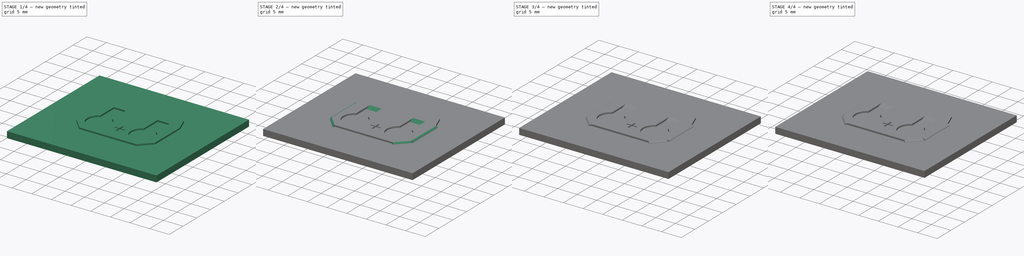
[diagram: build sequence overview — one tinted view per stage of 4, left to right]
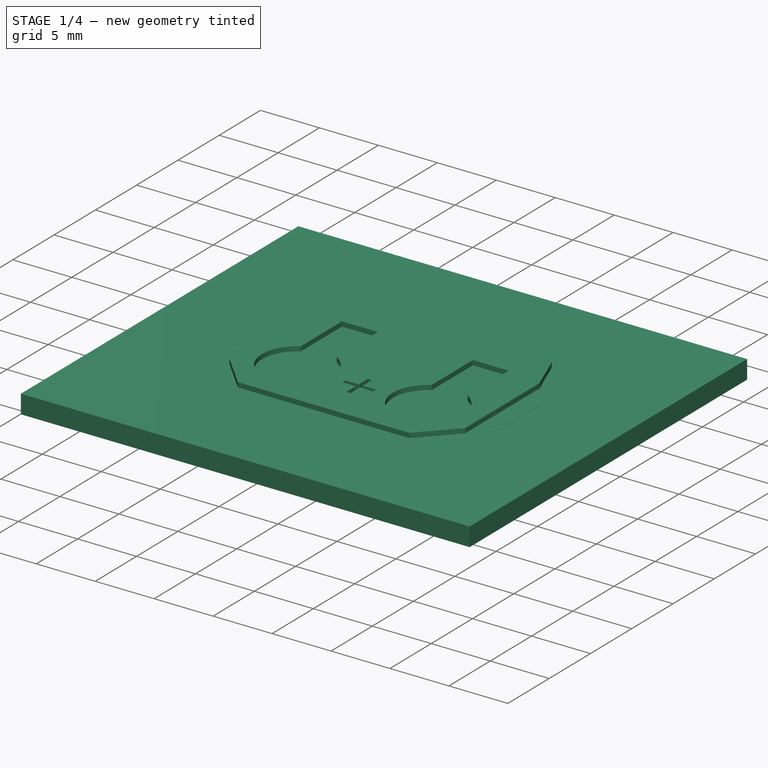
[diagram: stage 1 of 4 — iso view after this stage's code; geometry added in this stage tinted green]
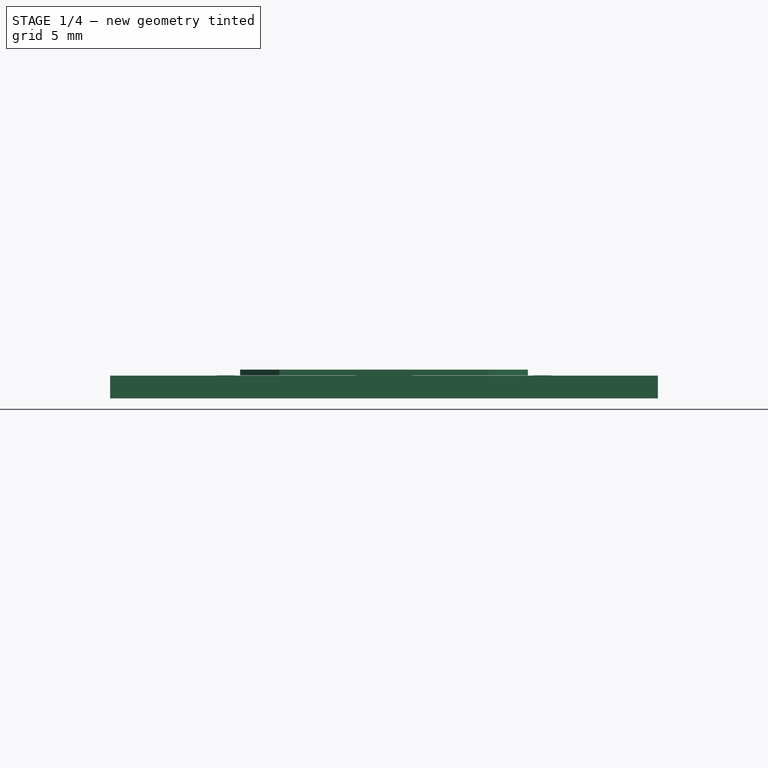
[diagram: stage 1 of 4 — front view after this stage's code; geometry added in this stage tinted green]
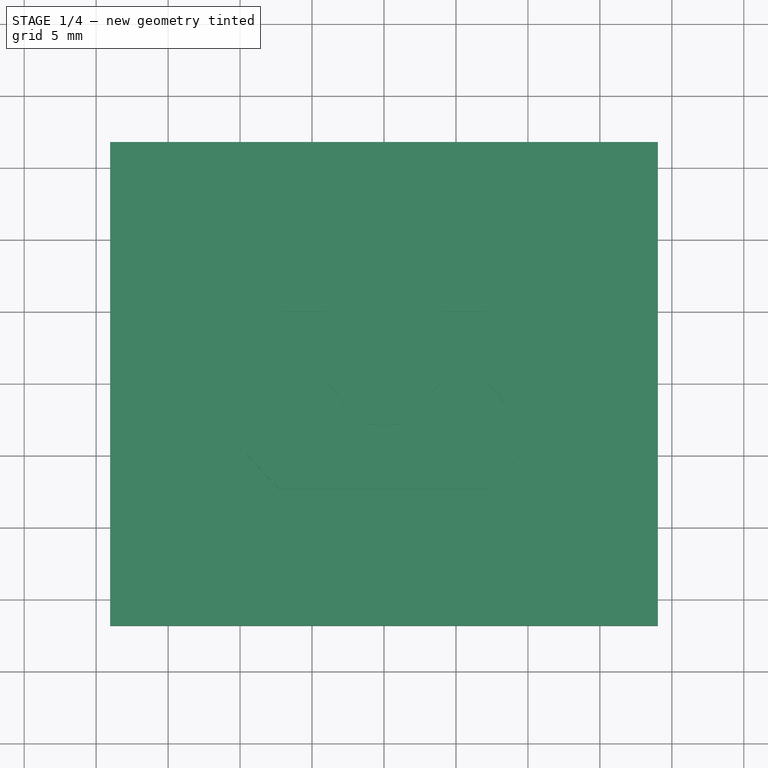
[diagram: stage 1 of 4 — top view after this stage's code; geometry added in this stage tinted green]
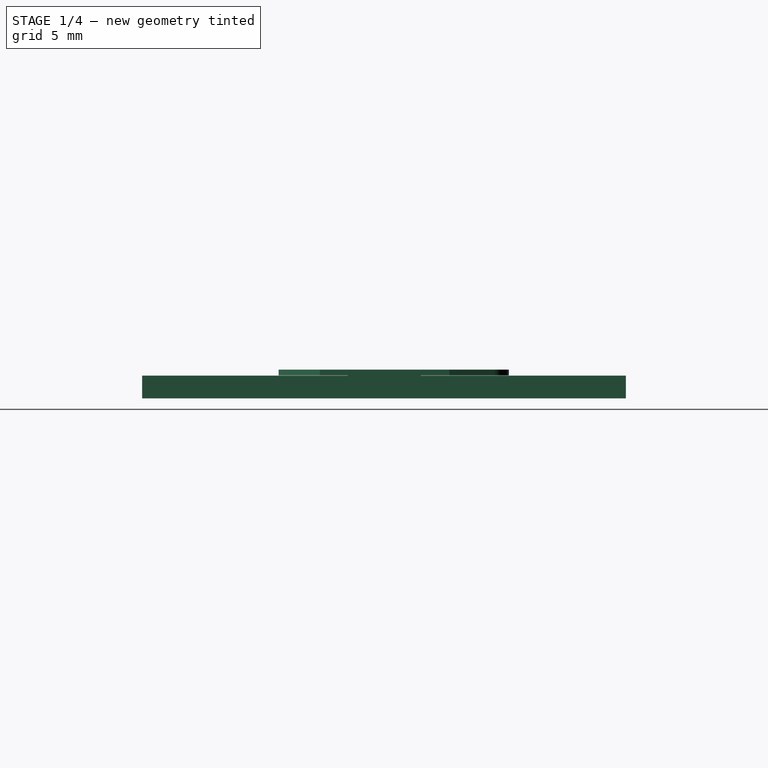
[diagram: stage 1 of 4 — right view after this stage's code; geometry added in this stage tinted green]
FCSTD DOCUMENT  (FreeCAD 0.18R16110 (Git))
Label: BatteryHolder_Keystone_3034_1x20mm
License: CreativeCommons Attribution
LicenseURL: http://creativecommons.org/licenses/by/4.0/
objects: PartDesign::FeaturePython×5, Part::FeaturePython×5, Sketcher::SketchObject×2, PartDesign::Pad×2, PartDesign::Fillet×2, Image::ImagePlane×1, App::DocumentObjectGroup×1, Part::Feature×1
note: 19 computed .brp shape members not serialized (recipe doc carries the construction recipe); baked Part::Feature solids carry a one-line shape summary decoded from their .brp

FEATURE [Sketcher::SketchObject] Sketch
  MapMode = 5
  sketch-geometry (31):
    g0: LineSegment StartX=-10 StartY=4.52857 StartZ=0 EndX=-10 EndY=-4.47143 EndZ=0
    g1: LineSegment StartX=-10 StartY=-4.47143 StartZ=0 EndX=-7.27 EndY=-7.34 EndZ=0
    g2: LineSegment StartX=-7.27 StartY=-7.34 StartZ=0 EndX=7.27 EndY=-7.34 EndZ=0
    g3: LineSegment StartX=7.27 StartY=-7.34 StartZ=0 EndX=10 EndY=-4.47143 EndZ=0
    g4: LineSegment StartX=10 StartY=-4.47143 StartZ=0 EndX=10 EndY=4.52857 EndZ=0
    g5: LineSegment StartX=10 StartY=4.52857 StartZ=0 EndX=8.81335 EndY=7.6199 EndZ=0
    g6: LineSegment StartX=-10 StartY=4.52857 StartZ=0 EndX=-8.81335 EndY=7.6199 EndZ=0
    g7: ArcOfCircle CenterX=-7.3 CenterY=7.03898 CenterZ=0 NormalX=0 NormalY=0 NormalZ=1 AngleXU=0 Radius=1.62102 StartAngle=0.924467 EndAngle=2.77507
    g8: ArcOfCircle CenterX=-7e-16 CenterY=16.7152 CenterZ=0 NormalX=0 NormalY=0 NormalZ=1 AngleXU=0 Radius=10.5 StartAngle=4.06606 EndAngle=5.35872
    g9: ArcOfCircle CenterX=7.3 CenterY=7.03898 CenterZ=0 NormalX=0 NormalY=0 NormalZ=1 AngleXU=0 Radius=1.62102 StartAngle=0.366519 EndAngle=2.21713
    g10: LineSegment [constr] StartX=-7.3 StartY=8.66 StartZ=0 EndX=7.3 EndY=8.66 EndZ=0
    g11: ArcOfCircle CenterX=-5.55 CenterY=-2.58348 CenterZ=0 NormalX=0 NormalY=0 NormalZ=1 AngleXU=0 Radius=3 StartAngle=2.10404 EndAngle=7.32073
    g12: LineSegment StartX=-7.075 StartY=4e-16 StartZ=0 EndX=-7.075 EndY=5 EndZ=0
    g13: LineSegment StartX=-7.075 StartY=5 StartZ=0 EndX=-4.025 EndY=5 EndZ=0
    g14: LineSegment StartX=-4.025 StartY=5 StartZ=0 EndX=-4.025 EndY=0 EndZ=0
    g15: ArcOfCircle CenterX=5.55 CenterY=-2.58348 CenterZ=0 NormalX=0 NormalY=0 NormalZ=1 AngleXU=0 Radius=3 StartAngle=2.10404 EndAngle=7.32073
    g16: LineSegment StartX=4.025 StartY=-4e-16 StartZ=0 EndX=4.025 EndY=5 EndZ=0
    g17: LineSegment StartX=4.025 StartY=5 StartZ=0 EndX=7.075 EndY=5 EndZ=0
    g18: LineSegment StartX=7.075 StartY=5 StartZ=0 EndX=7.075 EndY=0 EndZ=0
    g19: LineSegment StartX=-0.175 StartY=-3.19 StartZ=0 EndX=-1.3 EndY=-3.19 EndZ=0
    g20: LineSegment StartX=-1.3 StartY=-3.19 StartZ=0 EndX=-1.3 EndY=-2.84 EndZ=0
    g21: LineSegment StartX=-1.3 StartY=-2.84 StartZ=0 EndX=-0.175 EndY=-2.84 EndZ=0
    g22: LineSegment StartX=-0.175 StartY=-2.84 StartZ=0 EndX=-0.175 EndY=-1.715 EndZ=0
    g23: LineSegment StartX=-0.175 StartY=-1.715 StartZ=0 EndX=0.175 EndY=-1.715 EndZ=0
    g24: LineSegment StartX=0.175 StartY=-1.715 StartZ=0 EndX=0.175 EndY=-2.84 EndZ=0
    g25: LineSegment StartX=0.175 StartY=-2.84 StartZ=0 EndX=1.3 EndY=-2.84 EndZ=0
    g26: LineSegment StartX=1.3 StartY=-2.84 StartZ=0 EndX=1.3 EndY=-3.19 EndZ=0
    g27: LineSegment StartX=1.3 StartY=-3.19 StartZ=0 EndX=0.175 EndY=-3.19 EndZ=0
    g28: LineSegment StartX=0.175 StartY=-3.19 StartZ=0 EndX=0.175 EndY=-4.315 EndZ=0
    g29: LineSegment StartX=0.175 StartY=-4.315 StartZ=0 EndX=-0.175 EndY=-4.315 EndZ=0
    g30: LineSegment StartX=-0.175 StartY=-4.315 StartZ=0 EndX=-0.175 EndY=-3.19 EndZ=0
  constraints (89):
    c: Vertical(g0)
    c: Coincident(g0,g1)
    c: Coincident(g1,g2)
    c: Horizontal(g2)
    c: Coincident(g2,g3)
    c: Coincident(g3,g4)
    c: Vertical(g4)
    c: Coincident(g4,g5)
    c: Equal(g1,g3)
    c: Equal(g0,g4)
    c: Equal(g5,g6)
    c: Symmetric(g9,g7,g-2)
    c: DistanceX(g0,g3) = 20
    c: Coincident(g6,g0)
    c: Tangent(g7,g6) = 1.5708
    c: Tangent(g8,g7) = 1.5708
    c: Tangent(g9,g8) = 1.5708
    c: Tangent(g9,g5) = -1.5708
    c: PointOnObject(g10,g7)
    c: PointOnObject(g10,g9)
    c: Tangent(g10,g9)
    c: Vertical(g12)
    c: Coincident(g12,g13)
    c: Horizontal(g13)
    c: Coincident(g13,g14)
    c: Coincident(g14,g11)
    c: Vertical(g14)
    c: Coincident(g11,g12)
    c: Equal(g12,g14)
    c: Vertical(g16)
    c: Coincident(g16,g17)
    c: Coincident(g17,g18)
    c: Coincident(g18,g15)
    c: Coincident(g15,g16)
    c: Equal(g16,g18)
    c: Symmetric(g11,g15,g-2)
    c: Symmetric(g16,g13,g-2)
    c: Symmetric(g11,g15,g-2)
    c: DistanceY(g0,g0) = 9
    c: DistanceY(g1,g10) = 16
    c: DistanceX(g7,g9) = 14.6
    c: Radius(g11) = 3
    c: DistanceY(g14,g14) = 5
    c: Equal(g13,g17)
    c: DistanceX(g13,g13) = 3.05
    c: DistanceX(g11,g15) = 11.1
    c: PointOnObject(g11,g-1)
    c: Symmetric(g4,g0,g-2)
    c: DistanceY(g1,g-1) = 7.34
    c: Angle(g0,g6) = 2.77507
    c: Distance(g3) = 3.96
    c: DistanceX(g2,g2) = 14.54
    c: Tangent(g10,g7)
    c: Radius(g8) = 10.5
    c: Horizontal(g19)
    c: Coincident(g19,g20)
    c: Vertical(g20)
    c: Coincident(g20,g21)
    c: Horizontal(g21)
    c: Coincident(g21,g22)
    c: Vertical(g22)
    c: Coincident(g22,g23)
    c: Coincident(g23,g24)
    c: Vertical(g24)
    c: Coincident(g24,g25)
    c: Horizontal(g25)
    c: Coincident(g25,g26)
    c: Vertical(g26)
    c: Coincident(g26,g27)
    c: Horizontal(g27)
    c: Coincident(g27,g28)
    c: Vertical(g28)
    c: Coincident(g28,g29)
    c: Coincident(g29,g30)
    c: Coincident(g30,g19)
    c: Vertical(g30)
    c: Equal(g19,g21)
    c: Equal(g19,g30)
    c: Equal(g30,g28)
    c: Equal(g28,g27)
    c: Equal(g27,g25)
    c: Equal(g25,g24)
    c: Equal(g24,g22)
    c: Equal(g20,g26)
    c: Equal(g26,g23)
    c: Symmetric(g21,g24,g-2)
    c: DistanceX(g19,g26) = 2.6
    c: DistanceX(g29,g29) = 0.35
    c: DistanceY(g-1,g25) = -2.84
FEATURE [Image::ImagePlane] ImagePlane
  Placement = pos=(-0.19,-0.01,0) rot=(0,0,1;0rad)
  XSize = 30.0938
  YSize = 25.0162
FEATURE [PartDesign::Pad] Pad
  Length = 0.4
  Length2 = 100
  Profile = -> Sketch
  Type = 0
FEATURE [Part::FeaturePython] FCrtYd_lines  label="FCrtYd"  # a2plus imported part (geometry in sourceFile) (typed FeaturePython)
  fixedPosition = true
FEATURE [Part::FeaturePython] FFab_lines  label="FFab"  # a2plus imported part (geometry in sourceFile) (typed FeaturePython)
  fixedPosition = true
FEATURE [Part::FeaturePython] Filk_lines  label="FrontSilk"  # a2plus imported part (geometry in sourceFile) (typed FeaturePython)
  fixedPosition = true
FEATURE [Part::FeaturePython] TopPads  # a2plus imported part (geometry in sourceFile) (typed FeaturePython)
  fixedPosition = true
FEATURE [Part::FeaturePython] newPCB  label="Pcb"  # a2plus imported part (geometry in sourceFile) (typed FeaturePython)
  fixedPosition = true
FEATURE [App::DocumentObjectGroup] BatteryHolder_Keystone_3034_1x20mm_fp
  Group = -> [FCrtYd_lines,FFab_lines,Filk_lines,TopPads,newPCB]
FEATURE [Part::Feature] Shape001  label="BatteryHolder_Keystone_3034_1x20mm"
  shape: bbox 23.24 x 16.41 x 4 mm, 164 faces (baked)
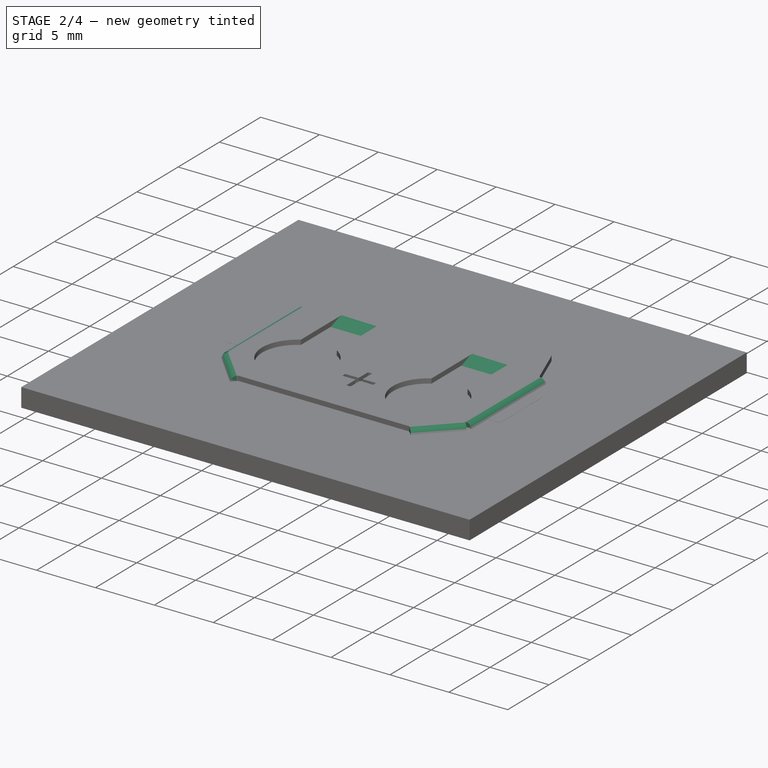
[diagram: stage 2 of 4 — iso view after this stage's code; geometry added in this stage tinted green]
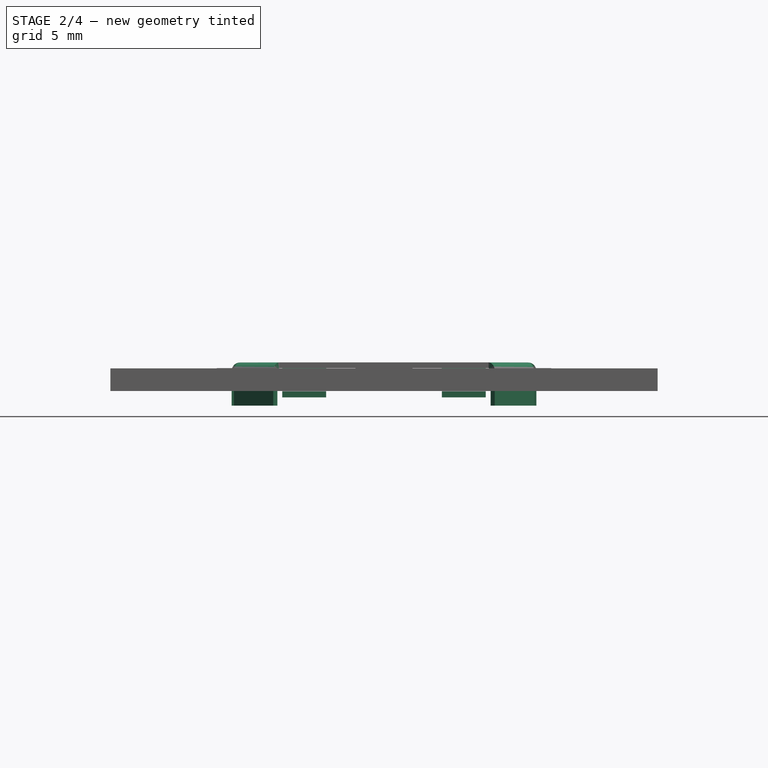
[diagram: stage 2 of 4 — front view after this stage's code; geometry added in this stage tinted green]
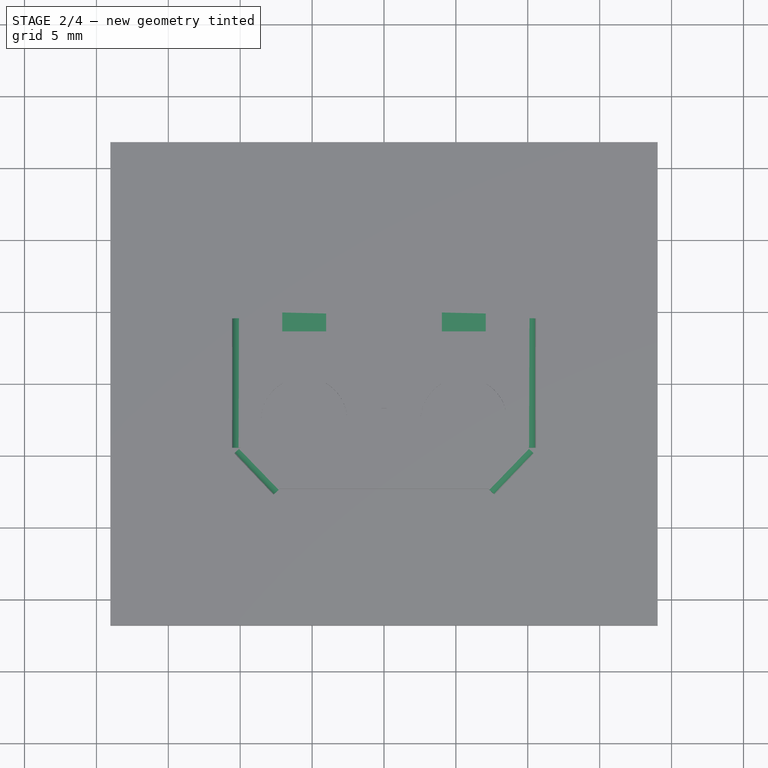
[diagram: stage 2 of 4 — top view after this stage's code; geometry added in this stage tinted green]
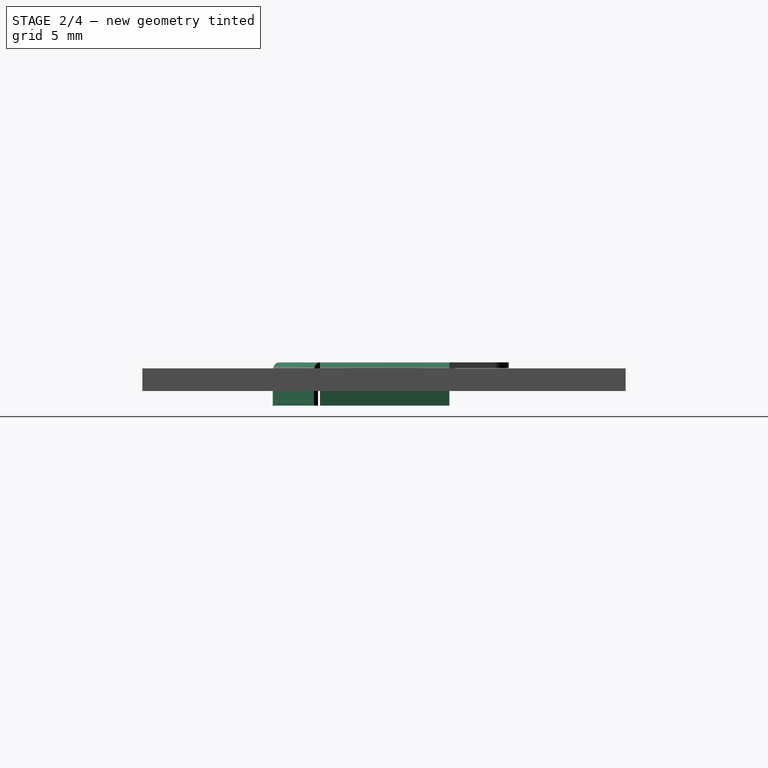
[diagram: stage 2 of 4 — right view after this stage's code; geometry added in this stage tinted green]
FEATURE [PartDesign::FeaturePython] Bend  # WARN: FeaturePython — macro-defined, semantics opaque (R4)
  AutoMiter = true
  BaseFeature = -> Pad
  BendType = 0
  LengthList = [2.4]
  ReliefFactor = 0.7
  UseReliefFactor = false
  angle = 90
  baseObject = -> Pad [Face4,Face5,Face1,Face2]
  bendAList = [90]
  extend1 = 0
  extend2 = 0
  gap1 = 0
  gap2 = 0
  invert = true
  kfactor = 0.5
  length = 2.4
  miterangle1 = 0
  miterangle2 = 0
  offset = 0
  radius = 0.2
  reliefType = 0
  reliefd = 1
  reliefw = 0.8
  sketchflip = false
  sketchinvert = false
  unfold = false
FEATURE [PartDesign::FeaturePython] Bend001  # WARN: FeaturePython — macro-defined, semantics opaque (R4)
  AutoMiter = true
  BaseFeature = -> Bend
  BendType = 0
  LengthList = [5.5]
  ReliefFactor = 0.7
  UseReliefFactor = false
  angle = 20
  baseObject = -> Bend [Face29,Face25]
  bendAList = [20]
  extend1 = 0
  extend2 = 0
  gap1 = 0
  gap2 = 0
  invert = true
  kfactor = 0.5
  length = 5.5
  miterangle1 = 0
  miterangle2 = 0
  offset = 0
  radius = 1
  reliefType = 0
  reliefd = 1
  reliefw = 0.8
  sketchflip = false
  sketchinvert = false
  unfold = false
FEATURE [PartDesign::FeaturePython] Bend002  # WARN: FeaturePython — macro-defined, semantics opaque (R4)
  AutoMiter = true
  BaseFeature = -> Bend001
  BendType = 0
  LengthList = [2]
  ReliefFactor = 0.7
  UseReliefFactor = false
  angle = 20
  baseObject = -> Bend001 [Face60,Face3]
  bendAList = [20]
  extend1 = 0
  extend2 = 0
  gap1 = 0
  gap2 = 0
  invert = false
  kfactor = 0.5
  length = 2
  miterangle1 = 0
  miterangle2 = 0
  offset = 0
  radius = 1
  reliefType = 0
  reliefd = 1
  reliefw = 0.8
  sketchflip = false
  sketchinvert = false
  unfold = false
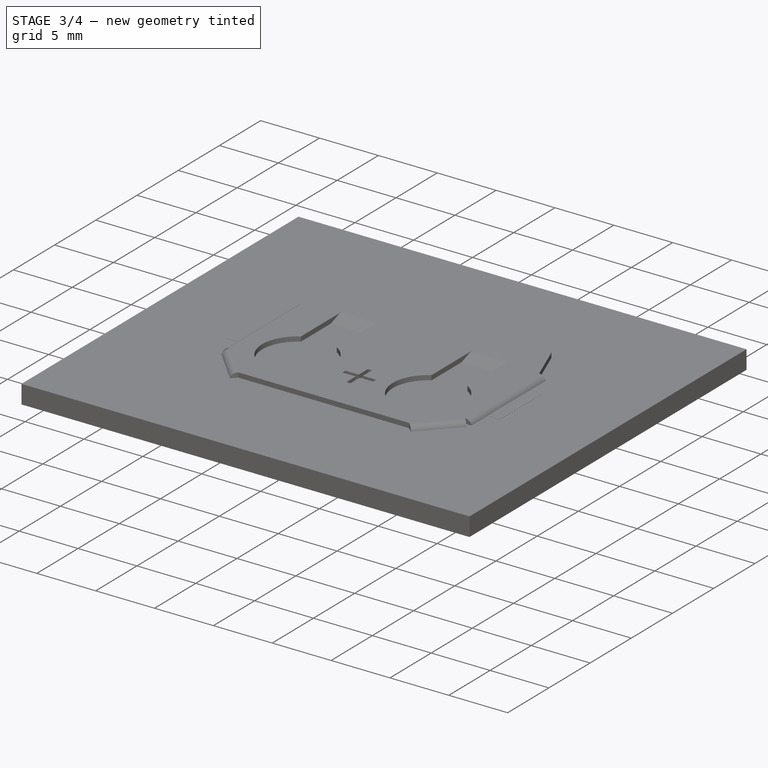
[diagram: stage 3 of 4 — iso view after this stage's code; geometry added in this stage tinted green]
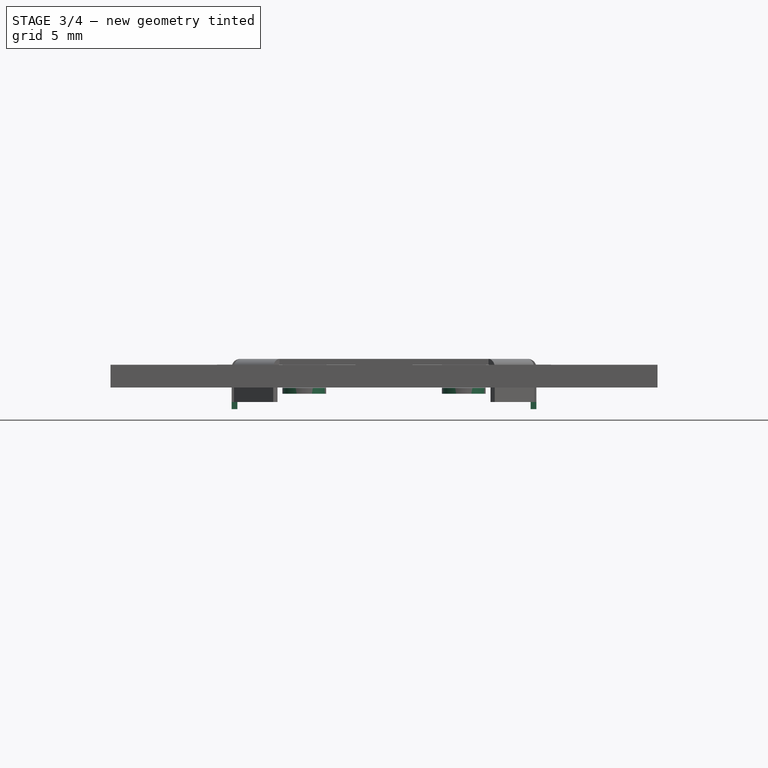
[diagram: stage 3 of 4 — front view after this stage's code; geometry added in this stage tinted green]
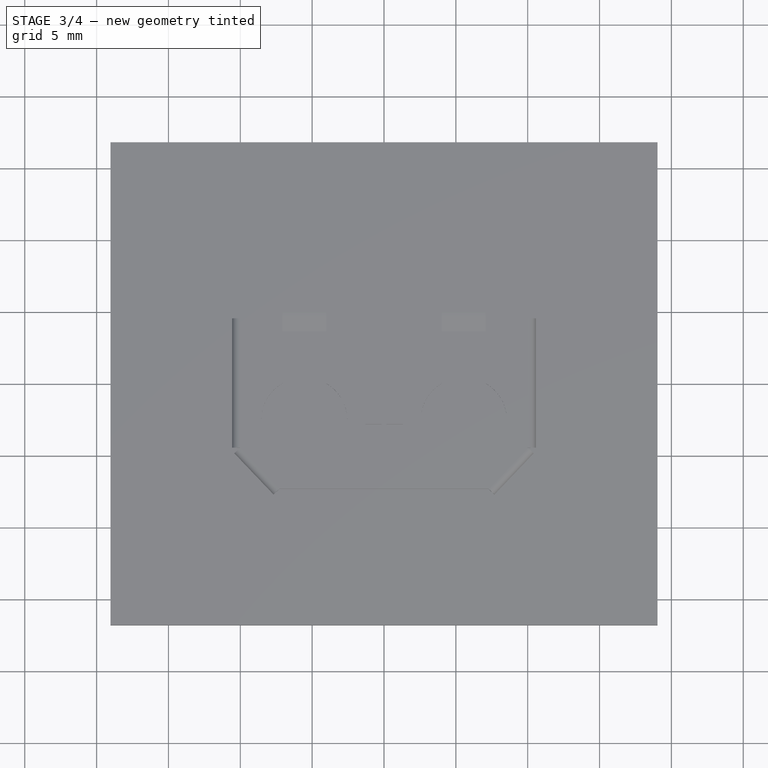
[diagram: stage 3 of 4 — top view after this stage's code; geometry added in this stage tinted green]
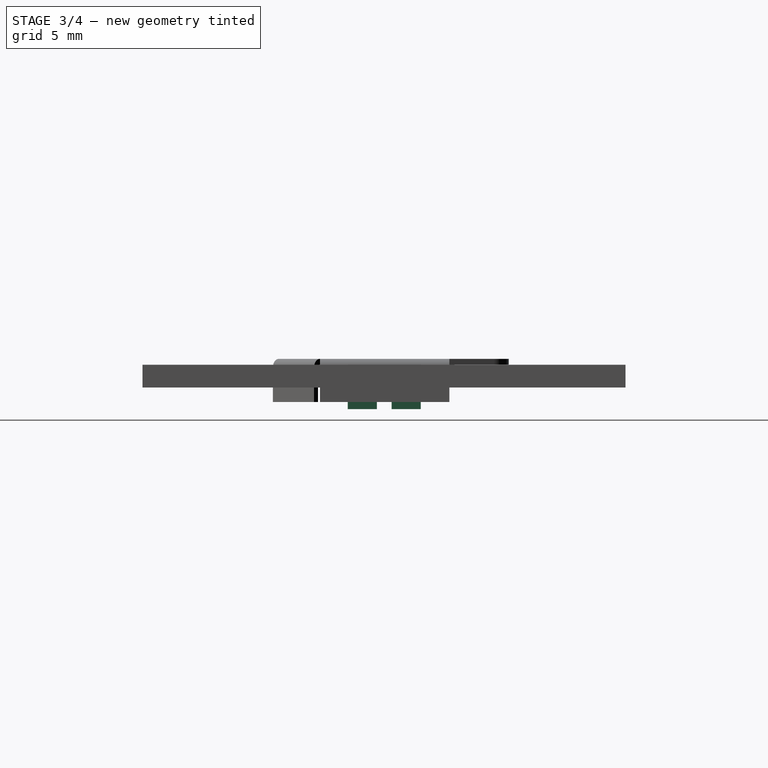
[diagram: stage 3 of 4 — right view after this stage's code; geometry added in this stage tinted green]
FEATURE [PartDesign::Fillet] Fillet
  Base = -> Bend002 [Edge219,Edge222,Edge2,Edge8]
  BaseFeature = -> Bend002
  Radius = 1.5
FEATURE [Sketcher::SketchObject] Sketch001
  ExternalGeometry = -> [Fillet]
  MapMode = 5
  Placement = pos=(0,0,-2.6) rot=(1,0,0;3.14159rad)
  Support = -> [Fillet]
  sketch-geometry (16):
    g0: LineSegment StartX=-10.6 StartY=2.54 StartZ=0 EndX=-10.2 EndY=2.54 EndZ=0
    g1: LineSegment StartX=-10.2 StartY=2.54 StartZ=0 EndX=-10.2 EndY=0.51 EndZ=0
    g2: LineSegment StartX=-10.2 StartY=0.51 StartZ=0 EndX=-10.6 EndY=0.51 EndZ=0
    g3: LineSegment StartX=-10.6 StartY=0.51 StartZ=0 EndX=-10.6 EndY=2.54 EndZ=0
    g4: LineSegment StartX=-10.6 StartY=-0.51 StartZ=0 EndX=-10.2 EndY=-0.51 EndZ=0
    g5: LineSegment StartX=-10.2 StartY=-0.51 StartZ=0 EndX=-10.2 EndY=-2.54 EndZ=0
    g6: LineSegment StartX=-10.2 StartY=-2.54 StartZ=0 EndX=-10.6 EndY=-2.54 EndZ=0
    g7: LineSegment StartX=-10.6 StartY=-2.54 StartZ=0 EndX=-10.6 EndY=-0.51 EndZ=0
    g8: LineSegment StartX=10.2 StartY=-0.51 StartZ=0 EndX=10.6 EndY=-0.51 EndZ=0
    g9: LineSegment StartX=10.6 StartY=-0.51 StartZ=0 EndX=10.6 EndY=-2.54 EndZ=0
    g10: LineSegment StartX=10.6 StartY=-2.54 StartZ=0 EndX=10.2 EndY=-2.54 EndZ=0
    g11: LineSegment StartX=10.2 StartY=-2.54 StartZ=0 EndX=10.2 EndY=-0.51 EndZ=0
    g12: LineSegment StartX=10.2 StartY=2.54 StartZ=0 EndX=10.6 EndY=2.54 EndZ=0
    g13: LineSegment StartX=10.6 StartY=2.54 StartZ=0 EndX=10.6 EndY=0.51 EndZ=0
    g14: LineSegment StartX=10.6 StartY=0.51 StartZ=0 EndX=10.2 EndY=0.51 EndZ=0
    g15: LineSegment StartX=10.2 StartY=0.51 StartZ=0 EndX=10.2 EndY=2.54 EndZ=0
  constraints (45):
    c: Coincident(g0,g1)
    c: Coincident(g1,g2)
    c: Coincident(g2,g3)
    c: Coincident(g3,g0)
    c: Horizontal(g0)
    c: Horizontal(g2)
    c: Vertical(g1)
    c: Vertical(g3)
    c: PointOnObject(g0,g-3)
    c: PointOnObject(g1,g-4)
    c: Coincident(g4,g5)
    c: Coincident(g5,g6)
    c: Coincident(g6,g7)
    c: Coincident(g7,g4)
    c: Horizontal(g4)
    c: Horizontal(g6)
    c: Vertical(g5)
    c: Vertical(g7)
    c: PointOnObject(g4,g-3)
    c: Coincident(g8,g9)
    c: Coincident(g9,g10)
    c: Coincident(g10,g11)
    c: Coincident(g11,g8)
    c: Horizontal(g8)
    c: Horizontal(g10)
    c: Vertical(g9)
    c: Vertical(g11)
    c: PointOnObject(g9,g-6)
    c: Coincident(g12,g13)
    c: Coincident(g13,g14)
    c: Coincident(g14,g15)
    c: Coincident(g15,g12)
    c: Horizontal(g12)
    c: Horizontal(g14)
    c: Vertical(g13)
    c: Vertical(g15)
    c: PointOnObject(g13,g-6)
    c: Equal(g13,g9)
    c: Equal(g9,g5)
    c: Equal(g5,g1)
    c: DistanceY(g9,g12) = 5.08
    c: DistanceY(g13,g13) = 2.03
    c: Symmetric(g12,g0,g-2)
    c: Symmetric(g5,g10,g-2)
    c: Symmetric(g10,g12,g-1)
FEATURE [PartDesign::Pad] Pad001
  BaseFeature = -> Fillet
  Length = 0.5
  Length2 = 100
  Profile = -> Sketch001
  Type = 0
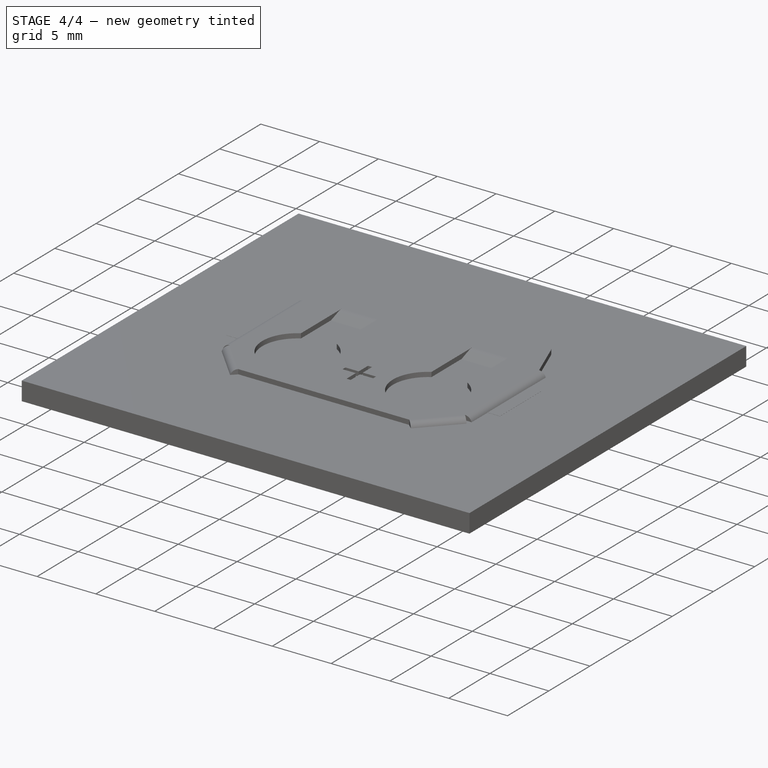
[diagram: stage 4 of 4 — iso view after this stage's code; geometry added in this stage tinted green]
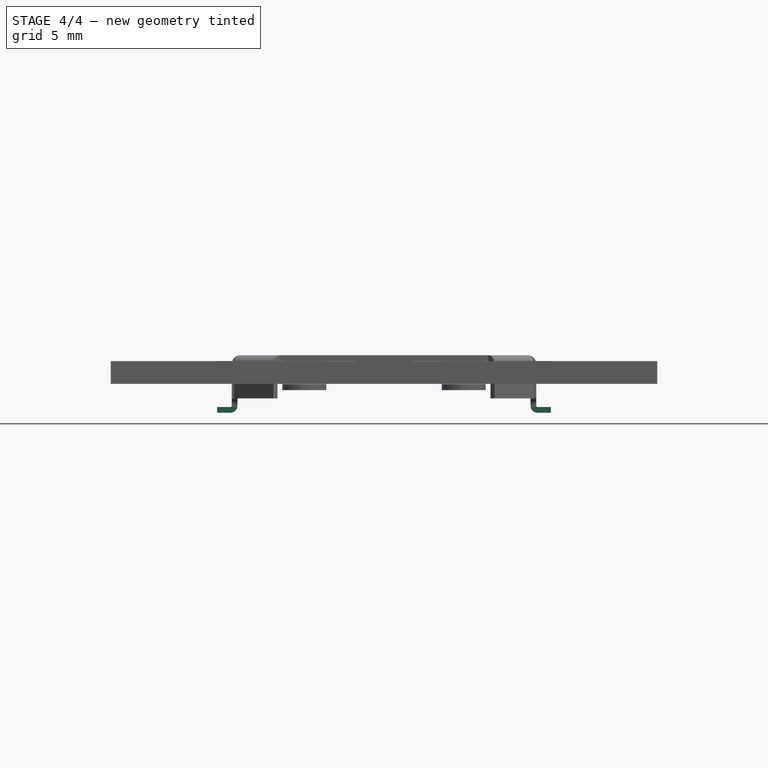
[diagram: stage 4 of 4 — front view after this stage's code; geometry added in this stage tinted green]
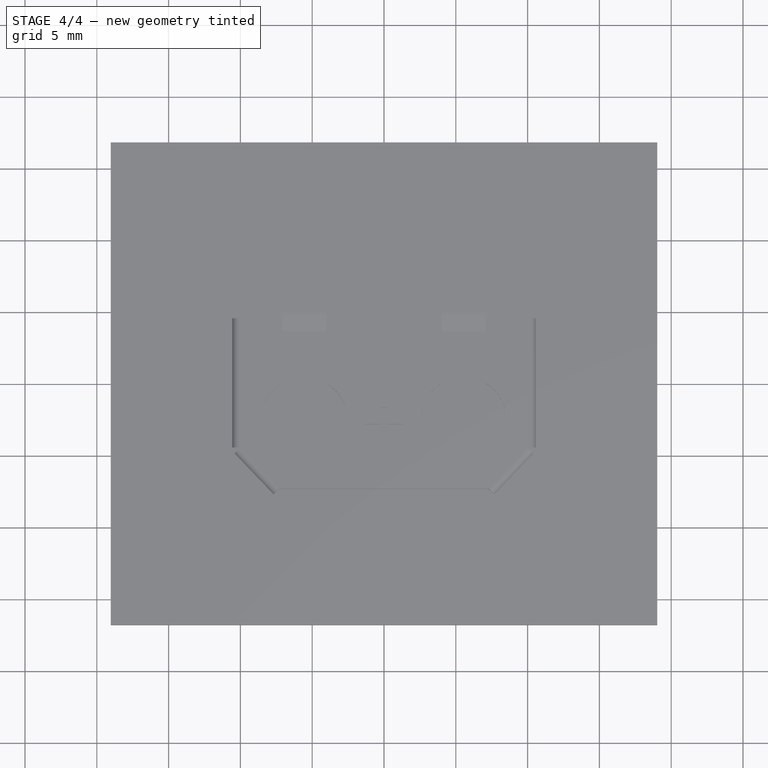
[diagram: stage 4 of 4 — top view after this stage's code; geometry added in this stage tinted green]
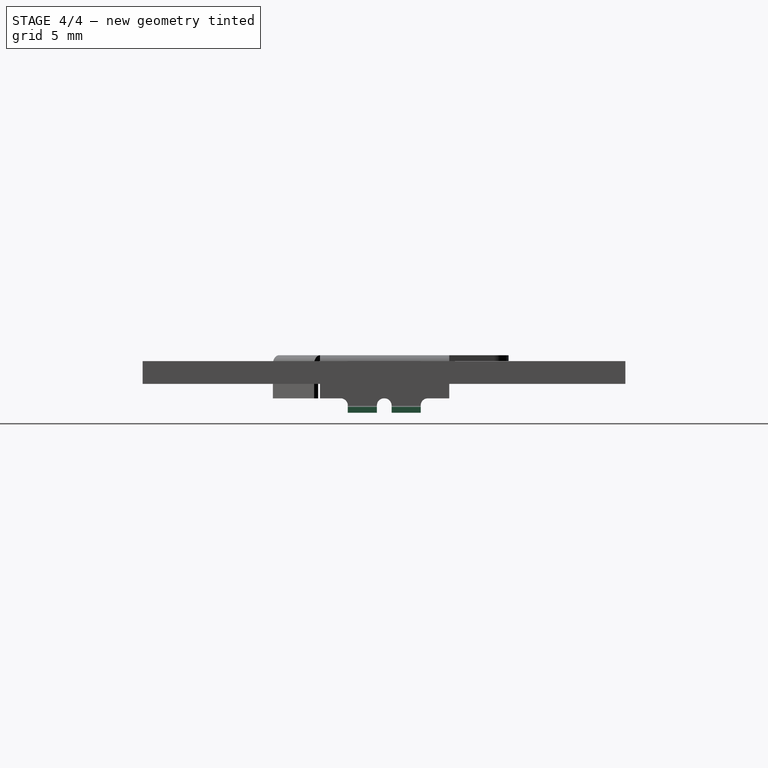
[diagram: stage 4 of 4 — right view after this stage's code; geometry added in this stage tinted green]
FEATURE [PartDesign::FeaturePython] Bend003  # WARN: FeaturePython — macro-defined, semantics opaque (R4)
  AutoMiter = true
  BaseFeature = -> Pad001
  BendType = 0
  LengthList = [0.92]
  ReliefFactor = 0.7
  UseReliefFactor = false
  angle = 90
  baseObject = -> Pad001 [Face109,Face106]
  bendAList = [90]
  extend1 = 0
  extend2 = 0
  gap1 = 0
  gap2 = 0
  invert = true
  kfactor = 0.5
  length = 0.92
  miterangle1 = 0
  miterangle2 = 0
  offset = 0
  radius = 0.1
  reliefType = 0
  reliefd = 1
  reliefw = 0.8
  sketchflip = false
  sketchinvert = false
  unfold = false
FEATURE [PartDesign::FeaturePython] Bend004  # WARN: FeaturePython — macro-defined, semantics opaque (R4)
  AutoMiter = true
  BaseFeature = -> Bend003
  BendType = 0
  LengthList = [0.92]
  ReliefFactor = 0.7
  UseReliefFactor = false
  angle = 90
  baseObject = -> Bend003 [Face127,Face130]
  bendAList = [90]
  extend1 = 0
  extend2 = 0
  gap1 = 0
  gap2 = 0
  invert = false
  kfactor = 0.5
  length = 0.92
  miterangle1 = 0
  miterangle2 = 0
  offset = 0
  radius = 0.1
  reliefType = 0
  reliefd = 1
  reliefw = 0.8
  sketchflip = false
  sketchinvert = false
  unfold = false
FEATURE [PartDesign::Fillet] Fillet001
  Base = -> Bend004 [Edge282,Edge277,Edge273,Edge278,Edge45,Edge21,Edge31,Edge51]
  BaseFeature = -> Bend004
  Radius = 0.49
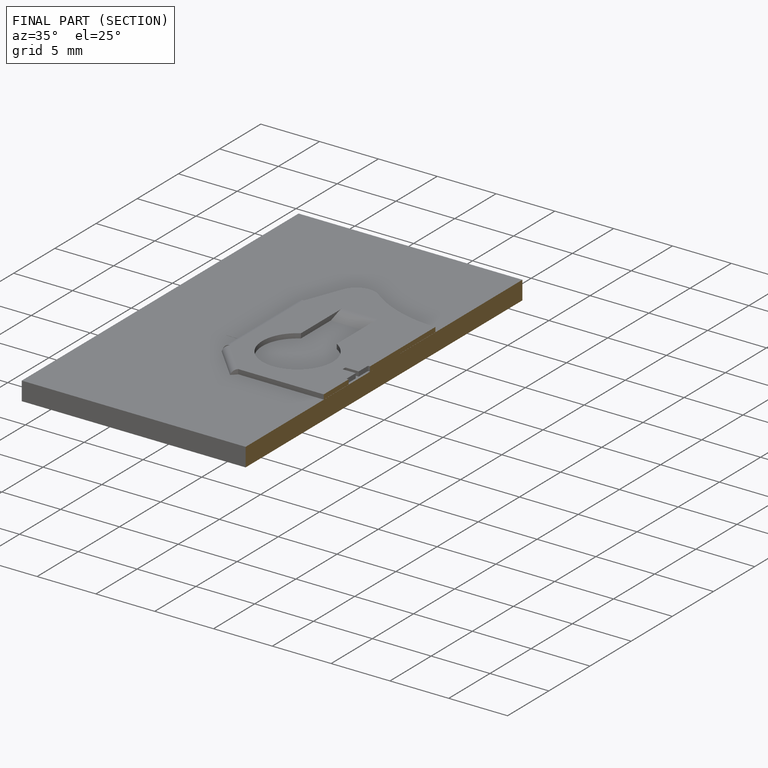
[diagram: finished part — half-section view (interior)]
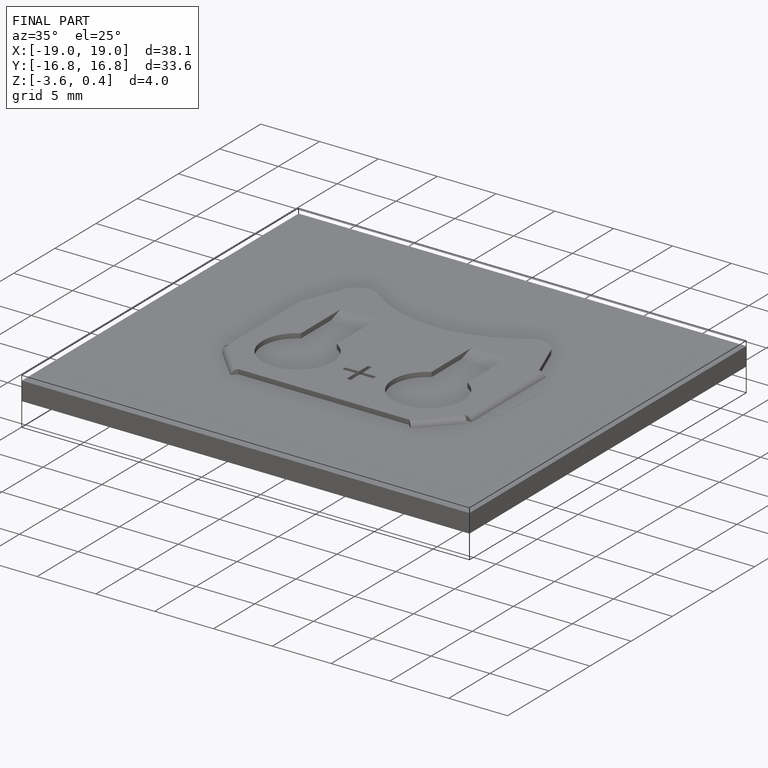
[diagram: finished part — iso view with bounding-box wireframe]
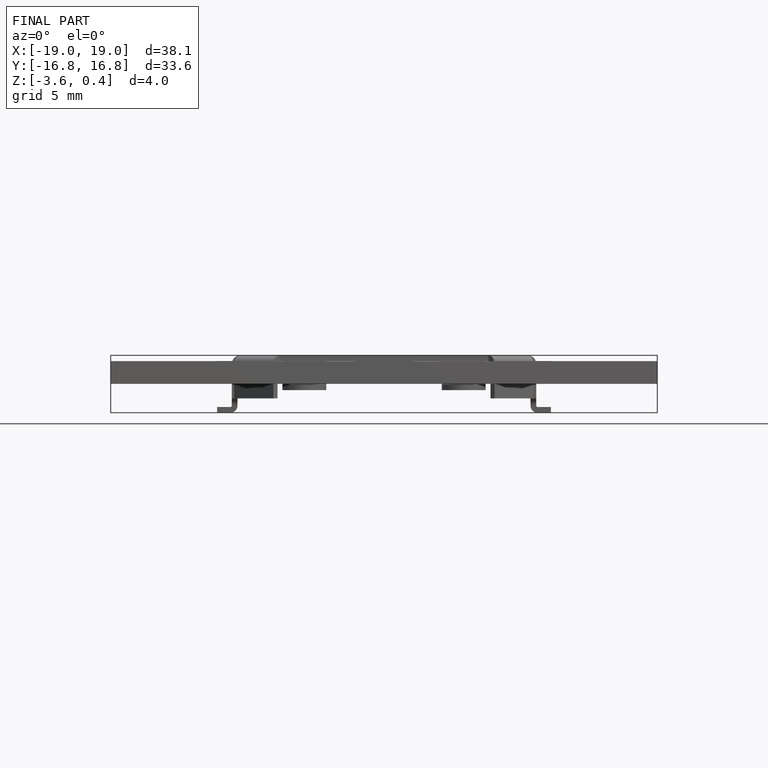
[diagram: finished part — front view with bounding-box wireframe]
